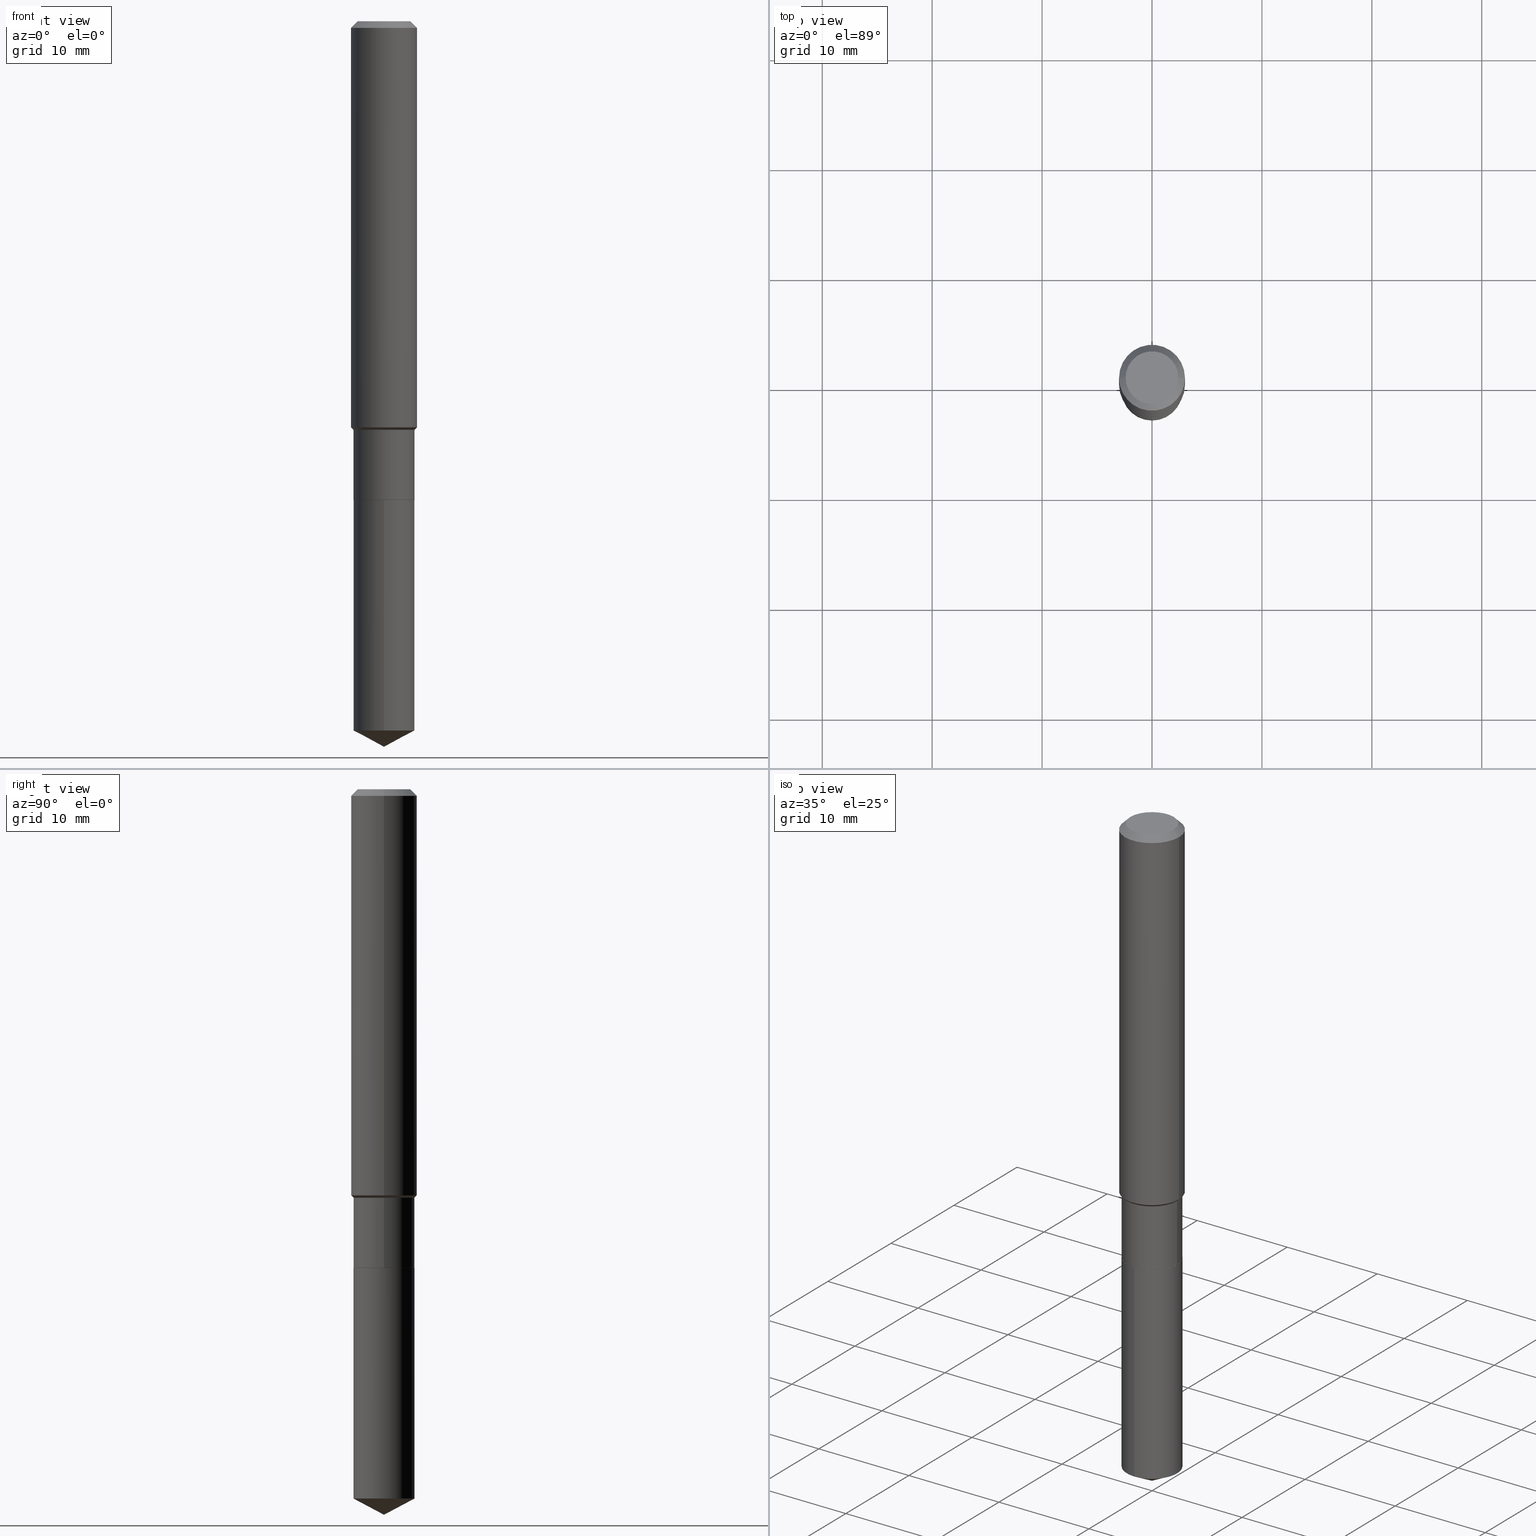
[diagram: canonical four-view strip — front | top / right | iso, engineering-drawing reading convention]
A machine part, canonical four-view strip (front | top / right | iso — engineering-drawing reading convention). The complete STEP part file that produces these views, byte-faithful:
ISO-10303-21;
HEADER;
FILE_DESCRIPTION (( 'STEP AP203' ),
    '1' );
FILE_NAME ('54708.STEP',
    '2024-04-24T15:25:59',
    ( '' ),
    ( '' ),
    'SwSTEP 2.0',
    'SolidWorks 2023',
    '' );
FILE_SCHEMA (( 'CONFIG_CONTROL_DESIGN' ));
ENDSEC;

DATA;
#1 = CYLINDRICAL_SURFACE ( 'NONE', #221, 0.1093999999999999972 ) ;
#2 = AXIS2_PLACEMENT_3D ( 'NONE', #161, #382, #308 ) ;
#3 = ORIENTED_EDGE ( 'NONE', *, *, #252, .F. ) ;
#4 = ADVANCED_FACE ( 'NONE', ( #416 ), #31, .T. ) ;
#5 = CARTESIAN_POINT ( 'NONE',  ( 3.578209957210091410E-29, -5.108735494995289992E-15, -1.463199999999999834 ) ) ;
#6 = CYLINDRICAL_SURFACE ( 'NONE', #326, 0.1181000000000000799 ) ;
#7 = DIRECTION ( 'NONE',  ( 2.445468806185136597E-29, -3.491481338843145583E-15, -1.000000000000000000 ) ) ;
#8 = VECTOR ( 'NONE', #366, 39.37007874015748854 ) ;
#9 = CC_DESIGN_PERSON_AND_ORGANIZATION_ASSIGNMENT ( #291, #475, ( #84 ) ) ;
#10 =( GEOMETRIC_REPRESENTATION_CONTEXT ( 3 ) GLOBAL_UNCERTAINTY_ASSIGNED_CONTEXT ( ( #411 ) ) GLOBAL_UNIT_ASSIGNED_CONTEXT ( ( #179, #299, #365 ) ) REPRESENTATION_CONTEXT ( 'NONE', 'WORKASPACE' ) );
#11 = DIRECTION ( 'NONE',  ( 1.000000000000000000, -6.982962677686271444E-15, 0.000000000000000000 ) ) ;
#12 = ORIENTED_EDGE ( 'NONE', *, *, #313, .F. ) ;
#13 = DIRECTION ( 'NONE',  ( 1.000000000000000000, -6.982962677686266711E-15, 0.000000000000000000 ) ) ;
#14 = ORIENTED_EDGE ( 'NONE', *, *, #327, .T. ) ;
#15 = PLANE ( 'NONE',  #110 ) ;
#16 = VERTEX_POINT ( 'NONE', #453 ) ;
#17 = CIRCLE ( 'NONE', #119, 0.1093999999999999972 ) ;
#18 = CARTESIAN_POINT ( 'NONE',  ( -7.639361169388354664E-16, -0.1094000000000059925, -1.714799999999999436 ) ) ;
#19 = ADVANCED_FACE ( 'NONE', ( #142 ), #81, .T. ) ;
#20 = ORIENTED_EDGE ( 'NONE', *, *, #487, .T. ) ;
#21 = COORDINATED_UNIVERSAL_TIME_OFFSET ( 5, 0, .BEHIND. ) ;
#22 = VERTEX_POINT ( 'NONE', #303 ) ;
#23 = DATE_AND_TIME ( #371, #75 ) ;
#24 = CARTESIAN_POINT ( 'NONE',  ( 0.09447999999999998066, -7.704367267948738690E-16, -2.700101262759583929E-17 ) ) ;
#25 = ADVANCED_FACE ( 'NONE', ( #114 ), #274, .T. ) ;
#26 = CIRCLE ( 'NONE', #310, 0.1093999999999999972 ) ;
#27 = CIRCLE ( 'NONE', #146, 0.1093999999999999695 ) ;
#28 = PERSON_AND_ORGANIZATION ( #160, #378 ) ;
#29 = LOCAL_TIME ( 11, 25, 59.00000000000000000, #104 ) ;
#30 = DIRECTION ( 'NONE',  ( 6.273719981627762132E-15, 0.8829475928589292089, 0.4694715627858865870 ) ) ;
#31 = CYLINDRICAL_SURFACE ( 'NONE', #155, 0.1181000000000000799 ) ;
#32 = DATE_AND_TIME ( #225, #139 ) ;
#33 = EDGE_LOOP ( 'NONE', ( #331, #243 ) ) ;
#34 = COORDINATED_UNIVERSAL_TIME_OFFSET ( 5, 0, .BEHIND. ) ;
#35 = LINE ( 'NONE', #149, #58 ) ;
#36 = AXIS2_PLACEMENT_3D ( 'NONE', #283, #94, #209 ) ;
#37 = APPROVAL ( #219, 'UNSPECIFIED' ) ;
#38 = CALENDAR_DATE ( 2024, 24, 4 ) ;
#39 = CARTESIAN_POINT ( 'NONE',  ( -0.1093999999999999695, -4.331401742073740803E-15, -1.463199999999999834 ) ) ;
#40 = APPROVAL_STATUS ( 'not_yet_approved' ) ;
#41 = DIRECTION ( 'NONE',  ( 1.000000000000000000, -6.982962677686266711E-15, 4.876176775795936353E-29 ) ) ;
#42 = ORIENTED_EDGE ( 'NONE', *, *, #242, .T. ) ;
#43 = EDGE_CURVE ( 'NONE', #247, #436, #376, .T. ) ;
#44 = DIRECTION ( 'NONE',  ( -2.445468806185136597E-29, 3.491481338843145583E-15, 1.000000000000000000 ) ) ;
#45 = AXIS2_PLACEMENT_3D ( 'NONE', #239, #80, #455 ) ;
#46 = DIRECTION ( 'NONE',  ( -6.982962677686265922E-15, -1.000000000000000000, 2.497118824190368439E-15 ) ) ;
#47 = LINE ( 'NONE', #273, #425 ) ;
#48 = DIRECTION ( 'NONE',  ( -2.445475505793823769E-29, 3.491471744622187291E-15, 1.000000000000000000 ) ) ;
#49 = ORIENTED_EDGE ( 'NONE', *, *, #55, .T. ) ;
#50 = AXIS2_PLACEMENT_3D ( 'NONE', #259, #191, #220 ) ;
#51 = DIRECTION ( 'NONE',  ( -0.7071067811865460184, 2.468850131082241283E-15, -0.7071067811865490160 ) ) ;
#52 = ORIENTED_EDGE ( 'NONE', *, *, #78, .T. ) ;
#53 = CARTESIAN_POINT ( 'NONE',  ( 6.212061172154443697E-29, -8.869161172201118079E-15, -2.540230988176234384 ) ) ;
#54 = ORIENTED_EDGE ( 'NONE', *, *, #417, .T. ) ;
#55 = EDGE_CURVE ( 'NONE', #474, #91, #35, .T. ) ;
#56 = CYLINDRICAL_SURFACE ( 'NONE', #255, 0.1093999999999999834 ) ;
#57 = EDGE_LOOP ( 'NONE', ( #72, #129, #20, #286 ) ) ;
#58 = VECTOR ( 'NONE', #334, 39.37007874015748143 ) ;
#59 = VECTOR ( 'NONE', #51, 39.37007874015748143 ) ;
#60 = CARTESIAN_POINT ( 'NONE',  ( 0.1088999999999999968, -6.747636835448259862E-15, -1.714799999999999880 ) ) ;
#61 = VERTEX_POINT ( 'NONE', #226 ) ;
#62 = DIRECTION ( 'NONE',  ( 1.000000000000000000, -6.982962677686267499E-15, 4.875432709231658792E-29 ) ) ;
#63 = CC_DESIGN_DATE_AND_TIME_ASSIGNMENT ( #32, #190, ( #84 ) ) ;
#64 = ORIENTED_EDGE ( 'NONE', *, *, #152, .F. ) ;
#65 = CONICAL_SURFACE ( 'NONE', #2, 74.04434902938338325, 1.082104136236485603 ) ;
#66 = MANIFOLD_SOLID_BREP ( 'Body-Move/Copy2[2]', #145 ) ;
#67 = AXIS2_PLACEMENT_3D ( 'NONE', #367, #113, #297 ) ;
#68 = CARTESIAN_POINT ( 'NONE',  ( 0.1180999999999999966, -8.926936027602933910E-16, -0.02362000000000014088 ) ) ;
#69 = APPLICATION_PROTOCOL_DEFINITION ( 'international standard', 'config_control_design', 1994, #278 ) ;
#70 = DIRECTION ( 'NONE',  ( -2.445468806185136597E-29, 3.491481338843145583E-15, 1.000000000000000000 ) ) ;
#71 = EDGE_CURVE ( 'NONE', #122, #358, #193, .T. ) ;
#72 = ORIENTED_EDGE ( 'NONE', *, *, #381, .F. ) ;
#73 = MANIFOLD_SOLID_BREP ( 'Body-Move/Copy2[1]', #354 ) ;
#74 = DIRECTION ( 'NONE',  ( -6.982962677686265922E-15, -1.000000000000000000, 2.497118824190368439E-15 ) ) ;
#75 = LOCAL_TIME ( 11, 25, 59.00000000000000000, #188 ) ;
#76 = CARTESIAN_POINT ( 'NONE',  ( 4.193489908846272188E-29, -5.987192199848225298E-15, -1.714799999999999880 ) ) ;
#77 = EDGE_LOOP ( 'NONE', ( #171, #49, #478, #272 ) ) ;
#78 = EDGE_CURVE ( 'NONE', #474, #330, #116, .T. ) ;
#79 = CARTESIAN_POINT ( 'NONE',  ( 6.603013411620882309E-46, -9.427353171913646324E-32, -2.700101262760083747E-17 ) ) ;
#80 = DIRECTION ( 'NONE',  ( -2.445468806185136597E-29, 3.491481338843145583E-15, 1.000000000000000000 ) ) ;
#81 = CONICAL_SURFACE ( 'NONE', #450, 0.1088999999999999968, 0.7853981633972775267 ) ;
#82 = AXIS2_PLACEMENT_3D ( 'NONE', #323, #279, #430 ) ;
#83 = ORIENTED_EDGE ( 'NONE', *, *, #201, .T. ) ;
#84 = SECURITY_CLASSIFICATION ( '', '', #264 ) ;
#85 = CARTESIAN_POINT ( 'NONE',  ( 6.354323554254669973E-29, -9.072240181226292208E-15, -2.598399999999999821 ) ) ;
#86 = VERTEX_POINT ( 'NONE', #267 ) ;
#87 = ADVANCED_FACE ( 'NONE', ( #409 ), #107, .T. ) ;
#88 = LINE ( 'NONE', #399, #206 ) ;
#89 = ORIENTED_EDGE ( 'NONE', *, *, #417, .F. ) ;
#90 = CARTESIAN_POINT ( 'NONE',  ( 4.193489908846272188E-29, -5.987192199848225298E-15, -1.714799999999999880 ) ) ;
#91 = VERTEX_POINT ( 'NONE', #481 ) ;
#92 = AXIS2_PLACEMENT_3D ( 'NONE', #140, #298, #446 ) ;
#93 = AXIS2_PLACEMENT_3D ( 'NONE', #79, #384, #460 ) ;
#94 = DIRECTION ( 'NONE',  ( -2.445468806185136597E-29, 3.491481338843145583E-15, 1.000000000000000000 ) ) ;
#95 = ORIENTED_EDGE ( 'NONE', *, *, #332, .F. ) ;
#96 = ADVANCED_FACE ( 'NONE', ( #257 ), #372, .T. ) ;
#97 = CARTESIAN_POINT ( 'NONE',  ( 0.1088999999999999968, -6.747636835448259862E-15, -1.714799999999999880 ) ) ;
#98 = ORIENTED_EDGE ( 'NONE', *, *, #112, .T. ) ;
#99 = LINE ( 'NONE', #213, #172 ) ;
#100 = EDGE_LOOP ( 'NONE', ( #42, #254, #388, #393 ) ) ;
#101 = CC_DESIGN_PERSON_AND_ORGANIZATION_ASSIGNMENT ( #482, #480, ( #256 ) ) ;
#102 = CALENDAR_DATE ( 2024, 24, 4 ) ;
#103 = DIRECTION ( 'NONE',  ( 1.000000000000000000, -6.982962677686266711E-15, 4.876176775795935793E-29 ) ) ;
#104 = COORDINATED_UNIVERSAL_TIME_OFFSET ( 5, 0, .BEHIND. ) ;
#105 = ORIENTED_EDGE ( 'NONE', *, *, #138, .F. ) ;
#106 = APPROVAL_ROLE ( '' ) ;
#107 = CYLINDRICAL_SURFACE ( 'NONE', #377, 0.1093999999999999972 ) ;
#108 = AXIS2_PLACEMENT_3D ( 'NONE', #489, #44, #316 ) ;
#109 = PERSON_AND_ORGANIZATION_ROLE ( 'design_owner' ) ;
#110 = AXIS2_PLACEMENT_3D ( 'NONE', #170, #325, #133 ) ;
#111 = DIRECTION ( 'NONE',  ( 1.000000000000000000, -6.982962677686264344E-15, 0.000000000000000000 ) ) ;
#112 = EDGE_CURVE ( 'NONE', #122, #61, #440, .T. ) ;
#113 = DIRECTION ( 'NONE',  ( 0.000000000000000000, 0.000000000000000000, 1.000000000000000000 ) ) ;
#114 = FACE_OUTER_BOUND ( 'NONE', #265, .T. ) ;
#115 = CARTESIAN_POINT ( 'NONE',  ( 6.212061172154443697E-29, -8.869161172201118079E-15, -2.540230988176234384 ) ) ;
#116 = CIRCLE ( 'NONE', #343, 0.1088999999999999968 ) ;
#117 = EDGE_CURVE ( 'NONE', #207, #391, #412, .T. ) ;
#118 = DIRECTION ( 'NONE',  ( 2.445475505793823489E-29, -3.491471744622187291E-15, -1.000000000000000000 ) ) ;
#119 = AXIS2_PLACEMENT_3D ( 'NONE', #237, #387, #46 ) ;
#120 = EDGE_LOOP ( 'NONE', ( #169, #98 ) ) ;
#121 = FACE_OUTER_BOUND ( 'NONE', #490, .T. ) ;
#122 = VERTEX_POINT ( 'NONE', #24 ) ;
#123 = CARTESIAN_POINT ( 'NONE',  ( 0.1093999999999999695, -5.872671611934168353E-15, -1.463199999999999834 ) ) ;
#124 = DIRECTION ( 'NONE',  ( -6.982962677686266711E-15, -1.000000000000000000, 3.541896320645568363E-15 ) ) ;
#125 = CIRCLE ( 'NONE', #294, 0.1181000000000001632 ) ;
#126 = EDGE_CURVE ( 'NONE', #434, #86, #181, .T. ) ;
#127 = PLANE ( 'NONE',  #82 ) ;
#128 = DIRECTION ( 'NONE',  ( -2.445468806185136597E-29, 3.491481338843145583E-15, 1.000000000000000000 ) ) ;
#129 = ORIENTED_EDGE ( 'NONE', *, *, #232, .T. ) ;
#130 = DIRECTION ( 'NONE',  ( 1.000000000000000000, -6.982962677686264344E-15, 0.000000000000000000 ) ) ;
#131 = EDGE_CURVE ( 'NONE', #207, #247, #368, .T. ) ;
#132 = EDGE_LOOP ( 'NONE', ( #419, #383, #301, #322 ) ) ;
#133 = DIRECTION ( 'NONE',  ( -1.000000000000000000, 6.982962677686265922E-15, -4.876176775795935793E-29 ) ) ;
#134 = ORIENTED_EDGE ( 'NONE', *, *, #463, .T. ) ;
#135 = CARTESIAN_POINT ( 'NONE',  ( -7.639361169388152518E-16, -0.1094000000000088374, -2.540230988176233495 ) ) ;
#136 = EDGE_LOOP ( 'NONE', ( #356, #328, #95, #210 ) ) ;
#137 = DIRECTION ( 'NONE',  ( -6.982962677686265922E-15, -1.000000000000000000, 2.497118824190368439E-15 ) ) ;
#138 = EDGE_CURVE ( 'NONE', #391, #247, #26, .T. ) ;
#139 = LOCAL_TIME ( 11, 25, 59.00000000000000000, #414 ) ;
#140 = CARTESIAN_POINT ( 'NONE',  ( 3.556934378596280140E-29, -5.078359607347354252E-15, -1.454499999999999682 ) ) ;
#141 = APPROVAL_ROLE ( '' ) ;
#142 = FACE_OUTER_BOUND ( 'NONE', #472, .T. ) ;
#143 = CARTESIAN_POINT ( 'NONE',  ( 4.193489908846272188E-29, -5.987192199848225298E-15, -1.714799999999999880 ) ) ;
#144 = ADVANCED_FACE ( 'NONE', ( #418 ), #1, .T. ) ;
#145 = CLOSED_SHELL ( 'NONE', ( #439, #25, #4, #353, #342, #96, #398, #162, #449, #479, #426, #19 ) ) ;
#146 = AXIS2_PLACEMENT_3D ( 'NONE', #5, #271, #422 ) ;
#147 = LENGTH_MEASURE_WITH_UNIT ( LENGTH_MEASURE( 0.02539999999999999897 ), #444 );
#148 = CC_DESIGN_SECURITY_CLASSIFICATION ( #84, ( #256 ) ) ;
#149 = CARTESIAN_POINT ( 'NONE',  ( -0.1088999999999999968, -5.213411160605476218E-15, -1.714799999999999880 ) ) ;
#150 = CARTESIAN_POINT ( 'NONE',  ( 4.193489908846271627E-29, -5.987192199848224509E-15, -1.714799999999999658 ) ) ;
#151 = PRODUCT_DEFINITION_SHAPE ( 'NONE', 'NONE',  #473 ) ;
#152 = EDGE_CURVE ( 'NONE', #86, #362, #427, .T. ) ;
#153 = LINE ( 'NONE', #123, #452 ) ;
#154 = PRODUCT_RELATED_PRODUCT_CATEGORY ( 'detail', '', ( #311 ) ) ;
#155 = AXIS2_PLACEMENT_3D ( 'NONE', #415, #228, #483 ) ;
#156 = CARTESIAN_POINT ( 'NONE',  ( 0.000000000000000000, 0.000000000000000000, 0.000000000000000000 ) ) ;
#157 = APPROVAL_PERSON_ORGANIZATION ( #195, #300, #192 ) ;
#158 = EDGE_LOOP ( 'NONE', ( #397, #134, #429, #3 ) ) ;
#159 = DIRECTION ( 'NONE',  ( -2.445468806185136597E-29, 3.491481338843145583E-15, 1.000000000000000000 ) ) ;
#160 = PERSON ( 'UNSPECIFIED', 'UNSPECIFIED', 'UNSPECIFIED', ('UNSPECIFIED'), ('UNSPECIFIED'), ('UNSPECIFIED') ) ;
#161 = CARTESIAN_POINT ( 'NONE',  ( -8.992425115446358329E-28, 1.283872608714141360E-13, 36.77167874015748339 ) ) ;
#162 = ADVANCED_FACE ( 'NONE', ( #380 ), #6, .T. ) ;
#163 = DIRECTION ( 'NONE',  ( -1.000000000000000000, 6.982962677686266711E-15, 0.000000000000000000 ) ) ;
#164 = CIRCLE ( 'NONE', #45, 0.1093999999999999972 ) ;
#165 = FACE_OUTER_BOUND ( 'NONE', #132, .T. ) ;
#166 = ORIENTED_EDGE ( 'NONE', *, *, #406, .T. ) ;
#167 = EDGE_CURVE ( 'NONE', #22, #86, #314, .T. ) ;
#168 = CARTESIAN_POINT ( 'NONE',  ( 3.578209957210091410E-29, -5.108735494995289992E-15, -1.463199999999999834 ) ) ;
#169 = ORIENTED_EDGE ( 'NONE', *, *, #208, .T. ) ;
#170 = CARTESIAN_POINT ( 'NONE',  ( 3.301506705810441154E-46, -4.713676585956823162E-32, -1.350050631380041873E-17 ) ) ;
#171 = ORIENTED_EDGE ( 'NONE', *, *, #313, .T. ) ;
#172 = VECTOR ( 'NONE', #287, 39.37007874015748143 ) ;
#173 = LOCAL_TIME ( 11, 25, 59.00000000000000000, #21 ) ;
#174 = DIRECTION ( 'NONE',  ( -2.445468806185136597E-29, 3.491481338843145583E-15, 1.000000000000000000 ) ) ;
#175 = ORIENTED_EDGE ( 'NONE', *, *, #373, .F. ) ;
#176 = PERSON_AND_ORGANIZATION_ROLE ( 'creator' ) ;
#177 = ORIENTED_EDGE ( 'NONE', *, *, #117, .F. ) ;
#178 = ADVANCED_FACE ( 'NONE', ( #121 ), #65, .T. ) ;
#179 =( CONVERSION_BASED_UNIT ( 'INCH', #147 ) LENGTH_UNIT ( ) NAMED_UNIT ( #445 ) );
#180 = DIRECTION ( 'NONE',  ( -2.445475505793823769E-29, 3.491471744622187291E-15, 1.000000000000000000 ) ) ;
#181 = CIRCLE ( 'NONE', #92, 0.1181000000000001632 ) ;
#182 = CONICAL_SURFACE ( 'NONE', #457, 0.1180999999999999966, 0.7853981633974461696 ) ;
#183 = AXIS2_PLACEMENT_3D ( 'NONE', #90, #396, #130 ) ;
#184 = CC_DESIGN_APPROVAL ( #37, ( #473 ) ) ;
#185 = CARTESIAN_POINT ( 'NONE',  ( 0.1093999999999999834, -7.639361169388774732E-16, 5.334537392720753208E-30 ) ) ;
#186 = DIRECTION ( 'NONE',  ( -2.445475505793823769E-29, 3.491471744622187291E-15, 1.000000000000000000 ) ) ;
#187 = EDGE_CURVE ( 'NONE', #288, #22, #27, .T. ) ;
#188 = COORDINATED_UNIVERSAL_TIME_OFFSET ( 5, 0, .BEHIND. ) ;
#189 = ORIENTED_EDGE ( 'NONE', *, *, #117, .T. ) ;
#190 = DATE_TIME_ROLE ( 'classification_date' ) ;
#191 = DIRECTION ( 'NONE',  ( 2.445468806185136597E-29, -3.491481338843145583E-15, -1.000000000000000000 ) ) ;
#192 = APPROVAL_ROLE ( '' ) ;
#193 = LINE ( 'NONE', #68, #394 ) ;
#194 = CC_DESIGN_PERSON_AND_ORGANIZATION_ASSIGNMENT ( #408, #176, ( #256 ) ) ;
#195 = PERSON_AND_ORGANIZATION ( #160, #378 ) ;
#196 = DIRECTION ( 'NONE',  ( 1.000000000000000000, -6.982962677686263555E-15, 0.000000000000000000 ) ) ;
#197 = DIRECTION ( 'NONE',  ( -2.445468806185136597E-29, 3.491481338843145583E-15, 1.000000000000000000 ) ) ;
#198 = ORIENTED_EDGE ( 'NONE', *, *, #71, .F. ) ;
#199 = CIRCLE ( 'NONE', #432, 0.1093999999999999972 ) ;
#200 = DIRECTION ( 'NONE',  ( -2.445468806185136597E-29, 3.491481338843145583E-15, 1.000000000000000000 ) ) ;
#201 = EDGE_CURVE ( 'NONE', #434, #358, #47, .T. ) ;
#202 = FACE_OUTER_BOUND ( 'NONE', #341, .T. ) ;
#203 = DIRECTION ( 'NONE',  ( -2.445468806185136877E-29, 3.491481338843145188E-15, 1.000000000000000000 ) ) ;
#204 = ADVANCED_BREP_SHAPE_REPRESENTATION ( '54708', ( #73, #66, #67 ), #10 ) ;
#205 = DIRECTION ( 'NONE',  ( 1.000000000000000000, -6.982962677686264344E-15, 0.000000000000000000 ) ) ;
#206 = VECTOR ( 'NONE', #462, 39.37007874015748143 ) ;
#207 = VERTEX_POINT ( 'NONE', #85 ) ;
#208 = EDGE_CURVE ( 'NONE', #61, #122, #263, .T. ) ;
#209 = DIRECTION ( 'NONE',  ( 1.000000000000000000, -6.982962677686266711E-15, 0.000000000000000000 ) ) ;
#210 = ORIENTED_EDGE ( 'NONE', *, *, #413, .F. ) ;
#211 = CARTESIAN_POINT ( 'NONE',  ( -0.1088999999999999968, -5.210761933431365017E-15, -1.714799999999999880 ) ) ;
#212 = ORIENTED_EDGE ( 'NONE', *, *, #78, .F. ) ;
#213 = CARTESIAN_POINT ( 'NONE',  ( -0.1093999999999999834, 7.773337529215494852E-16, -5.381314988738866015E-30 ) ) ;
#214 = ORIENTED_EDGE ( 'NONE', *, *, #167, .T. ) ;
#215 = AXIS2_PLACEMENT_3D ( 'NONE', #321, #128, #281 ) ;
#216 = EDGE_CURVE ( 'NONE', #86, #434, #125, .T. ) ;
#217 = ORIENTED_EDGE ( 'NONE', *, *, #373, .T. ) ;
#218 = CARTESIAN_POINT ( 'NONE',  ( 6.354300577276716395E-29, -9.072273085566491700E-15, -2.598399999999999821 ) ) ;
#219 = APPROVAL_STATUS ( 'not_yet_approved' ) ;
#220 = DIRECTION ( 'NONE',  ( -1.000000000000000000, 6.982962677686266711E-15, 0.000000000000000000 ) ) ;
#221 = AXIS2_PLACEMENT_3D ( 'NONE', #269, #459, #74 ) ;
#222 = EDGE_CURVE ( 'NONE', #22, #288, #236, .T. ) ;
#223 = PERSON_AND_ORGANIZATION ( #160, #378 ) ;
#224 = DIRECTION ( 'NONE',  ( 1.000000000000000000, -6.982962677686264344E-15, 0.000000000000000000 ) ) ;
#225 = CALENDAR_DATE ( 2024, 24, 4 ) ;
#226 = CARTESIAN_POINT ( 'NONE',  ( -0.09447999999999998066, 7.009847083995354710E-16, -2.700101262760559836E-17 ) ) ;
#227 = DATE_AND_TIME ( #38, #295 ) ;
#228 = DIRECTION ( 'NONE',  ( -2.445468806185136597E-29, 3.491481338843145583E-15, 1.000000000000000000 ) ) ;
#229 = AXIS2_PLACEMENT_3D ( 'NONE', #443, #407, #62 ) ;
#230 = VECTOR ( 'NONE', #289, 39.37007874015748143 ) ;
#231 = DIRECTION ( 'NONE',  ( -0.7071067811865516806, 7.493145998870369937E-15, 0.7071067811865433539 ) ) ;
#232 = EDGE_CURVE ( 'NONE', #91, #16, #476, .T. ) ;
#233 = DIRECTION ( 'NONE',  ( -2.445468806185136597E-29, 3.491481338843145583E-15, 1.000000000000000000 ) ) ;
#234 = CARTESIAN_POINT ( 'NONE',  ( 3.578209957210091410E-29, -5.108735494995289992E-15, -1.463199999999999834 ) ) ;
#235 = EDGE_CURVE ( 'NONE', #288, #434, #153, .T. ) ;
#236 = CIRCLE ( 'NONE', #420, 0.1093999999999999695 ) ;
#237 = CARTESIAN_POINT ( 'NONE',  ( 4.193489908846271627E-29, -5.987192199848224509E-15, -1.714799999999999658 ) ) ;
#238 = ORIENTED_EDGE ( 'NONE', *, *, #187, .T. ) ;
#239 = CARTESIAN_POINT ( 'NONE',  ( 4.192267174443178826E-29, -5.985446459178803005E-15, -1.714299999999999713 ) ) ;
#240 = ORIENTED_EDGE ( 'NONE', *, *, #208, .F. ) ;
#241 = DIRECTION ( 'NONE',  ( -2.445468806185136597E-29, 3.491481338843145583E-15, 1.000000000000000000 ) ) ;
#242 = EDGE_CURVE ( 'NONE', #16, #91, #164, .T. ) ;
#243 = ORIENTED_EDGE ( 'NONE', *, *, #252, .T. ) ;
#244 = CARTESIAN_POINT ( 'NONE',  ( 0.000000000000000000, 0.000000000000000000, 0.000000000000000000 ) ) ;
#245 = CIRCLE ( 'NONE', #36, 0.1180999999999999966 ) ;
#246 = CC_DESIGN_APPROVAL ( #300, ( #84 ) ) ;
#247 = VERTEX_POINT ( 'NONE', #423 ) ;
#248 = FACE_OUTER_BOUND ( 'NONE', #280, .T. ) ;
#249 = ORIENTED_EDGE ( 'NONE', *, *, #406, .F. ) ;
#250 = DIRECTION ( 'NONE',  ( -2.445468806185136597E-29, 3.491481338843145583E-15, 1.000000000000000000 ) ) ;
#251 = ORIENTED_EDGE ( 'NONE', *, *, #126, .T. ) ;
#252 = EDGE_CURVE ( 'NONE', #436, #431, #17, .T. ) ;
#253 = CARTESIAN_POINT ( 'NONE',  ( 5.776197320209327532E-31, -8.246878922347559293E-17, -0.02362000000000014088 ) ) ;
#254 = ORIENTED_EDGE ( 'NONE', *, *, #381, .T. ) ;
#255 = AXIS2_PLACEMENT_3D ( 'NONE', #244, #250, #401 ) ;
#256 = PRODUCT_DEFINITION_FORMATION_WITH_SPECIFIED_SOURCE ( 'ANY', '', #311, .NOT_KNOWN. ) ;
#257 = FACE_OUTER_BOUND ( 'NONE', #57, .T. ) ;
#258 = DATE_AND_TIME ( #305, #29 ) ;
#259 = CARTESIAN_POINT ( 'NONE',  ( 5.776197320209327532E-31, -8.246878922347559293E-17, -0.02362000000000014088 ) ) ;
#260 = ADVANCED_FACE ( 'NONE', ( #202 ), #404, .T. ) ;
#261 = DATE_TIME_ROLE ( 'creation_date' ) ;
#262 = DIRECTION ( 'NONE',  ( -2.445468806185136597E-29, 3.491481338843145583E-15, 1.000000000000000000 ) ) ;
#263 = CIRCLE ( 'NONE', #93, 0.09447999999999998066 ) ;
#264 = SECURITY_CLASSIFICATION_LEVEL ( 'unclassified' ) ;
#265 = EDGE_LOOP ( 'NONE', ( #467, #324, #166, #89 ) ) ;
#266 = PERSON_AND_ORGANIZATION ( #160, #378 ) ;
#267 = CARTESIAN_POINT ( 'NONE',  ( -0.1181000000000001632, -4.239208636414675266E-15, -1.454499999999999682 ) ) ;
#268 = ADVANCED_FACE ( 'NONE', ( #390 ), #486, .F. ) ;
#269 = CARTESIAN_POINT ( 'NONE',  ( 4.193489908846271627E-29, -5.987192199848224509E-15, -1.714799999999999658 ) ) ;
#270 = DIRECTION ( 'NONE',  ( 6.982962677686265922E-15, 1.000000000000000000, -3.491471744622187291E-15 ) ) ;
#271 = DIRECTION ( 'NONE',  ( -2.445468806185136597E-29, 3.491481338843145583E-15, 1.000000000000000000 ) ) ;
#272 = ORIENTED_EDGE ( 'NONE', *, *, #327, .F. ) ;
#273 = CARTESIAN_POINT ( 'NONE',  ( 0.1181000000000000799, -8.246878922347486570E-16, 5.758764772215004644E-30 ) ) ;
#274 = CONICAL_SURFACE ( 'NONE', #50, 0.1180999999999999966, 0.7853981633974461696 ) ;
#275 = AXIS2_PLACEMENT_3D ( 'NONE', #253, #174, #13 ) ;
#276 = DIRECTION ( 'NONE',  ( -2.445468806185136877E-29, 3.491481338843145188E-15, 1.000000000000000000 ) ) ;
#277 = APPROVAL ( #338, 'UNSPECIFIED' ) ;
#278 = APPLICATION_CONTEXT ( 'configuration controlled 3d designs of mechanical parts and assemblies' ) ;
#279 = DIRECTION ( 'NONE',  ( -2.438088387897960049E-29, 3.491481338843145188E-15, 1.000000000000000000 ) ) ;
#280 = EDGE_LOOP ( 'NONE', ( #198, #240, #54, #217 ) ) ;
#281 = DIRECTION ( 'NONE',  ( 1.000000000000000000, -6.982962677686271444E-15, 0.000000000000000000 ) ) ;
#282 = ORIENTED_EDGE ( 'NONE', *, *, #235, .F. ) ;
#283 = CARTESIAN_POINT ( 'NONE',  ( 5.776197320209327532E-31, -8.246878922347559293E-17, -0.02362000000000014088 ) ) ;
#284 = AXIS2_PLACEMENT_3D ( 'NONE', #351, #461, #124 ) ;
#285 = CC_DESIGN_APPROVAL ( #277, ( #256 ) ) ;
#286 = ORIENTED_EDGE ( 'NONE', *, *, #222, .F. ) ;
#287 = DIRECTION ( 'NONE',  ( -2.445468806185136877E-29, 3.491481338843145188E-15, 1.000000000000000000 ) ) ;
#288 = VERTEX_POINT ( 'NONE', #421 ) ;
#289 = DIRECTION ( 'NONE',  ( 0.7071067811864267805, -2.468850131080992517E-15, 0.7071067811866682540 ) ) ;
#290 = ORIENTED_EDGE ( 'NONE', *, *, #152, .T. ) ;
#291 = PERSON_AND_ORGANIZATION ( #160, #378 ) ;
#292 = CARTESIAN_POINT ( 'NONE',  ( 0.000000000000000000, 0.000000000000000000, 0.000000000000000000 ) ) ;
#293 = AXIS2_PLACEMENT_3D ( 'NONE', #292, #262, #103 ) ;
#294 = AXIS2_PLACEMENT_3D ( 'NONE', #317, #159, #196 ) ;
#295 = LOCAL_TIME ( 11, 25, 59.00000000000000000, #34 ) ;
#296 = CC_DESIGN_PERSON_AND_ORGANIZATION_ASSIGNMENT ( #441, #109, ( #311 ) ) ;
#297 = DIRECTION ( 'NONE',  ( 1.000000000000000000, 0.000000000000000000, 0.000000000000000000 ) ) ;
#298 = DIRECTION ( 'NONE',  ( -2.445468806185136597E-29, 3.491481338843145583E-15, 1.000000000000000000 ) ) ;
#299 =( NAMED_UNIT ( * ) PLANE_ANGLE_UNIT ( ) SI_UNIT ( $, .RADIAN. ) );
#300 = APPROVAL ( #40, 'UNSPECIFIED' ) ;
#301 = ORIENTED_EDGE ( 'NONE', *, *, #235, .T. ) ;
#302 = APPLICATION_PROTOCOL_DEFINITION ( 'international standard', 'config_control_design', 1994, #379 ) ;
#303 = CARTESIAN_POINT ( 'NONE',  ( -0.1093999999999999695, -4.769757224165497309E-15, -1.463199999999999834 ) ) ;
#304 = CIRCLE ( 'NONE', #275, 0.1180999999999999966 ) ;
#305 = CALENDAR_DATE ( 2024, 24, 4 ) ;
#306 = ORIENTED_EDGE ( 'NONE', *, *, #216, .T. ) ;
#307 = CC_DESIGN_PERSON_AND_ORGANIZATION_ASSIGNMENT ( #28, #363, ( #473 ) ) ;
#308 = DIRECTION ( 'NONE',  ( -6.982962677686266711E-15, -1.000000000000000000, 3.541896320645568363E-15 ) ) ;
#309 = DIRECTION ( 'NONE',  ( 0.7071067811865516806, -2.468850131082300448E-15, 0.7071067811865433539 ) ) ;
#310 = AXIS2_PLACEMENT_3D ( 'NONE', #115, #454, #347 ) ;
#311 = PRODUCT ( '54708', '54708', '', ( #374 ) ) ;
#312 = APPROVAL_DATE_TIME ( #227, #300 ) ;
#313 = EDGE_CURVE ( 'NONE', #330, #474, #485, .T. ) ;
#314 = LINE ( 'NONE', #39, #318 ) ;
#315 = ORIENTED_EDGE ( 'NONE', *, *, #131, .F. ) ;
#316 = DIRECTION ( 'NONE',  ( 1.000000000000000000, -6.982962677686269866E-15, 0.000000000000000000 ) ) ;
#317 = CARTESIAN_POINT ( 'NONE',  ( 3.556934378596280140E-29, -5.078359607347354252E-15, -1.454499999999999682 ) ) ;
#318 = VECTOR ( 'NONE', #231, 39.37007874015748143 ) ;
#319 = FACE_OUTER_BOUND ( 'NONE', #100, .T. ) ;
#320 = CC_DESIGN_DATE_AND_TIME_ASSIGNMENT ( #336, #261, ( #473 ) ) ;
#321 = CARTESIAN_POINT ( 'NONE',  ( 3.578209957210091410E-29, -5.108735494995289992E-15, -1.463199999999999834 ) ) ;
#322 = ORIENTED_EDGE ( 'NONE', *, *, #216, .F. ) ;
#323 = CARTESIAN_POINT ( 'NONE',  ( 1.189614977930268288E-29, -1.028891207086335600E-14, -1.714799999999999880 ) ) ;
#324 = ORIENTED_EDGE ( 'NONE', *, *, #71, .T. ) ;
#325 = DIRECTION ( 'NONE',  ( 2.438088387897960049E-29, -3.491481338843145188E-15, -1.000000000000000000 ) ) ;
#326 = AXIS2_PLACEMENT_3D ( 'NONE', #156, #200, #41 ) ;
#327 = EDGE_CURVE ( 'NONE', #330, #16, #428, .T. ) ;
#328 = ORIENTED_EDGE ( 'NONE', *, *, #43, .T. ) ;
#329 = FACE_OUTER_BOUND ( 'NONE', #360, .T. ) ;
#330 = VERTEX_POINT ( 'NONE', #97 ) ;
#331 = ORIENTED_EDGE ( 'NONE', *, *, #332, .T. ) ;
#332 = EDGE_CURVE ( 'NONE', #431, #436, #199, .T. ) ;
#333 = APPROVAL_DATE_TIME ( #23, #277 ) ;
#334 = DIRECTION ( 'NONE',  ( -0.7071067811864267805, 7.493145998869918709E-15, 0.7071067811866682540 ) ) ;
#335 = CONICAL_SURFACE ( 'NONE', #215, 0.1093999999999999695, 0.7853981633974541632 ) ;
#336 = DATE_AND_TIME ( #102, #173 ) ;
#337 = CARTESIAN_POINT ( 'NONE',  ( 6.354323755735645609E-29, -9.072240181226292208E-15, -2.598399999999999821 ) ) ;
#338 = APPROVAL_STATUS ( 'not_yet_approved' ) ;
#339 = EDGE_LOOP ( 'NONE', ( #251, #290, #249, #470 ) ) ;
#340 = DIRECTION ( 'NONE',  ( -2.445468806185136877E-29, 3.491481338843145188E-15, 1.000000000000000000 ) ) ;
#341 = EDGE_LOOP ( 'NONE', ( #315, #189, #385 ) ) ;
#342 = ADVANCED_FACE ( 'NONE', ( #319 ), #56, .T. ) ;
#343 = AXIS2_PLACEMENT_3D ( 'NONE', #451, #375, #111 ) ;
#344 = VECTOR ( 'NONE', #276, 39.37007874015748143 ) ;
#345 = CARTESIAN_POINT ( 'NONE',  ( 4.193489908846271627E-29, -5.987192199848224509E-15, -1.714799999999999658 ) ) ;
#346 = DIRECTION ( 'NONE',  ( 1.000000000000000000, -6.982962677686271444E-15, 0.000000000000000000 ) ) ;
#347 = DIRECTION ( 'NONE',  ( -6.982962677686265922E-15, -1.000000000000000000, 4.994237648380736877E-15 ) ) ;
#348 = AXIS2_PLACEMENT_3D ( 'NONE', #76, #233, #205 ) ;
#349 = APPROVAL_PERSON_ORGANIZATION ( #223, #277, #106 ) ;
#350 = CARTESIAN_POINT ( 'NONE',  ( -0.1181000000000000799, 8.391509709326788873E-16, -5.809262341591047988E-30 ) ) ;
#351 = CARTESIAN_POINT ( 'NONE',  ( -8.992425115446358329E-28, 1.283872608714141360E-13, 36.77167874015748339 ) ) ;
#352 = CARTESIAN_POINT ( 'NONE',  ( 0.1181000000000001632, -5.903047499582104093E-15, -1.454499999999999682 ) ) ;
#353 = ADVANCED_FACE ( 'NONE', ( #437 ), #468, .T. ) ;
#354 = CLOSED_SHELL ( 'NONE', ( #144, #178, #260, #87, #268 ) ) ;
#355 = CARTESIAN_POINT ( 'NONE',  ( 4.193489908846271627E-29, -5.987192199848224509E-15, -1.714799999999999658 ) ) ;
#356 = ORIENTED_EDGE ( 'NONE', *, *, #138, .T. ) ;
#357 = CARTESIAN_POINT ( 'NONE',  ( -0.1180999999999999966, -1.741263227352735474E-15, -0.02362000000000014088 ) ) ;
#358 = VERTEX_POINT ( 'NONE', #471 ) ;
#359 = FACE_OUTER_BOUND ( 'NONE', #120, .T. ) ;
#360 = EDGE_LOOP ( 'NONE', ( #12, #212 ) ) ;
#361 = LINE ( 'NONE', #392, #59 ) ;
#362 = VERTEX_POINT ( 'NONE', #357 ) ;
#363 = PERSON_AND_ORGANIZATION_ROLE ( 'creator' ) ;
#364 = EDGE_LOOP ( 'NONE', ( #238, #214, #400, #282 ) ) ;
#365 =( NAMED_UNIT ( * ) SI_UNIT ( $, .STERADIAN. ) SOLID_ANGLE_UNIT ( ) );
#366 = DIRECTION ( 'NONE',  ( -6.165590087286829718E-15, -0.8829475928589257672, 0.4694715627858926932 ) ) ;
#367 = CARTESIAN_POINT ( 'NONE',  ( 0.000000000000000000, 0.000000000000000000, 0.000000000000000000 ) ) ;
#368 = LINE ( 'NONE', #337, #456 ) ;
#369 = AXIS2_PLACEMENT_3D ( 'NONE', #53, #433, #435 ) ;
#370 = APPROVAL_PERSON_ORGANIZATION ( #266, #37, #141 ) ;
#371 = CALENDAR_DATE ( 2024, 24, 4 ) ;
#372 = CYLINDRICAL_SURFACE ( 'NONE', #293, 0.1093999999999999834 ) ;
#373 = EDGE_CURVE ( 'NONE', #362, #358, #245, .T. ) ;
#374 = MECHANICAL_CONTEXT ( 'NONE', #379, 'mechanical' ) ;
#375 = DIRECTION ( 'NONE',  ( -2.445468806185136597E-29, 3.491481338843145583E-15, 1.000000000000000000 ) ) ;
#376 = LINE ( 'NONE', #484, #424 ) ;
#377 = AXIS2_PLACEMENT_3D ( 'NONE', #345, #186, #137 ) ;
#378 = ORGANIZATION ( 'UNSPECIFIED', 'UNSPECIFIED', '' ) ;
#379 = APPLICATION_CONTEXT ( 'configuration controlled 3d designs of mechanical parts and assemblies' ) ;
#380 = FACE_OUTER_BOUND ( 'NONE', #438, .T. ) ;
#381 = EDGE_CURVE ( 'NONE', #91, #22, #99, .T. ) ;
#382 = DIRECTION ( 'NONE',  ( -2.445475505793823769E-29, 3.491471744622187291E-15, 1.000000000000000000 ) ) ;
#383 = ORIENTED_EDGE ( 'NONE', *, *, #222, .T. ) ;
#384 = DIRECTION ( 'NONE',  ( -2.445468806185136597E-29, 3.491481338843145583E-15, 1.000000000000000000 ) ) ;
#385 = ORIENTED_EDGE ( 'NONE', *, *, #463, .F. ) ;
#386 = AXIS2_PLACEMENT_3D ( 'NONE', #150, #118, #270 ) ;
#387 = DIRECTION ( 'NONE',  ( -2.445475505793823769E-29, 3.491471744622187291E-15, 1.000000000000000000 ) ) ;
#388 = ORIENTED_EDGE ( 'NONE', *, *, #187, .F. ) ;
#389 = DESIGN_CONTEXT ( 'detailed design', #278, 'design' ) ;
#390 = FACE_OUTER_BOUND ( 'NONE', #33, .T. ) ;
#391 = VERTEX_POINT ( 'NONE', #135 ) ;
#392 = CARTESIAN_POINT ( 'NONE',  ( -0.1180999999999999966, 7.422191030112725094E-16, -0.02362000000000014088 ) ) ;
#393 = ORIENTED_EDGE ( 'NONE', *, *, #487, .F. ) ;
#394 = VECTOR ( 'NONE', #448, 39.37007874015748143 ) ;
#395 = CONICAL_SURFACE ( 'NONE', #183, 0.1088999999999999968, 0.7853981633972775267 ) ;
#396 = DIRECTION ( 'NONE',  ( -2.445468806185136597E-29, 3.491481338843145583E-15, 1.000000000000000000 ) ) ;
#397 = ORIENTED_EDGE ( 'NONE', *, *, #43, .F. ) ;
#398 = ADVANCED_FACE ( 'NONE', ( #165 ), #335, .T. ) ;
#399 = CARTESIAN_POINT ( 'NONE',  ( -7.639361169388354664E-16, -0.1094000000000059925, -1.714799999999999436 ) ) ;
#400 = ORIENTED_EDGE ( 'NONE', *, *, #126, .F. ) ;
#401 = DIRECTION ( 'NONE',  ( 1.000000000000000000, -6.982962677686266711E-15, 4.876176775795935793E-29 ) ) ;
#402 = ORIENTED_EDGE ( 'NONE', *, *, #131, .T. ) ;
#403 = CARTESIAN_POINT ( 'NONE',  ( 7.773337529216117066E-16, 0.1093999999999940020, -1.714799999999999880 ) ) ;
#404 = CONICAL_SURFACE ( 'NONE', #284, 74.04434902938338325, 1.082104136236485603 ) ;
#405 = ORIENTED_EDGE ( 'NONE', *, *, #232, .F. ) ;
#406 = EDGE_CURVE ( 'NONE', #358, #362, #304, .T. ) ;
#407 = DIRECTION ( 'NONE',  ( -2.445468806185136597E-29, 3.491481338843145583E-15, 1.000000000000000000 ) ) ;
#408 = PERSON_AND_ORGANIZATION ( #160, #378 ) ;
#409 = FACE_OUTER_BOUND ( 'NONE', #158, .T. ) ;
#410 = LINE ( 'NONE', #185, #477 ) ;
#411 = UNCERTAINTY_MEASURE_WITH_UNIT (LENGTH_MEASURE( 1.000000000000000082E-05 ), #179, 'distance_accuracy_value', 'NONE');
#412 = LINE ( 'NONE', #218, #8 ) ;
#413 = EDGE_CURVE ( 'NONE', #391, #431, #88, .T. ) ;
#414 = COORDINATED_UNIVERSAL_TIME_OFFSET ( 5, 0, .BEHIND. ) ;
#415 = CARTESIAN_POINT ( 'NONE',  ( 0.000000000000000000, 0.000000000000000000, 0.000000000000000000 ) ) ;
#416 = FACE_OUTER_BOUND ( 'NONE', #339, .T. ) ;
#417 = EDGE_CURVE ( 'NONE', #61, #362, #361, .T. ) ;
#418 = FACE_OUTER_BOUND ( 'NONE', #136, .T. ) ;
#419 = ORIENTED_EDGE ( 'NONE', *, *, #167, .F. ) ;
#420 = AXIS2_PLACEMENT_3D ( 'NONE', #234, #197, #346 ) ;
#421 = CARTESIAN_POINT ( 'NONE',  ( 0.1093999999999999695, -5.872671611934168353E-15, -1.463199999999999834 ) ) ;
#422 = DIRECTION ( 'NONE',  ( 1.000000000000000000, -6.982962677686271444E-15, 0.000000000000000000 ) ) ;
#423 = CARTESIAN_POINT ( 'NONE',  ( 7.773337529216115094E-16, 0.1093999999999911155, -2.540230988176234828 ) ) ;
#424 = VECTOR ( 'NONE', #180, 39.37007874015748143 ) ;
#425 = VECTOR ( 'NONE', #203, 39.37007874015748143 ) ;
#426 = ADVANCED_FACE ( 'NONE', ( #329 ), #127, .F. ) ;
#427 = LINE ( 'NONE', #350, #344 ) ;
#428 = LINE ( 'NONE', #60, #230 ) ;
#429 = ORIENTED_EDGE ( 'NONE', *, *, #413, .T. ) ;
#430 = DIRECTION ( 'NONE',  ( 1.000000000000000000, -6.982962677686265922E-15, 4.876176775795935793E-29 ) ) ;
#431 = VERTEX_POINT ( 'NONE', #18 ) ;
#432 = AXIS2_PLACEMENT_3D ( 'NONE', #355, #48, #464 ) ;
#433 = DIRECTION ( 'NONE',  ( -2.445475505793823769E-29, 3.491471744622187291E-15, 1.000000000000000000 ) ) ;
#434 = VERTEX_POINT ( 'NONE', #352 ) ;
#435 = DIRECTION ( 'NONE',  ( -6.982962677686265922E-15, -1.000000000000000000, 4.994237648380736877E-15 ) ) ;
#436 = VERTEX_POINT ( 'NONE', #403 ) ;
#437 = FACE_OUTER_BOUND ( 'NONE', #364, .T. ) ;
#438 = EDGE_LOOP ( 'NONE', ( #64, #306, #83, #175 ) ) ;
#439 = ADVANCED_FACE ( 'NONE', ( #466 ), #395, .T. ) ;
#440 = CIRCLE ( 'NONE', #229, 0.09447999999999998066 ) ;
#441 = PERSON_AND_ORGANIZATION ( #160, #378 ) ;
#442 = AXIS2_PLACEMENT_3D ( 'NONE', #168, #241, #11 ) ;
#443 = CARTESIAN_POINT ( 'NONE',  ( 6.603013411620882309E-46, -9.427353171913646324E-32, -2.700101262760083747E-17 ) ) ;
#444 =( LENGTH_UNIT ( ) NAMED_UNIT ( * ) SI_UNIT ( $, .METRE. ) );
#445 = DIMENSIONAL_EXPONENTS ( 1.000000000000000000, 0.000000000000000000, 0.000000000000000000, 0.000000000000000000, 0.000000000000000000, 0.000000000000000000, 0.000000000000000000 ) ;
#446 = DIRECTION ( 'NONE',  ( 1.000000000000000000, -6.982962677686263555E-15, 0.000000000000000000 ) ) ;
#447 = APPROVAL_DATE_TIME ( #258, #37 ) ;
#448 = DIRECTION ( 'NONE',  ( 0.7071067811865460184, -7.319954787623251312E-15, -0.7071067811865490160 ) ) ;
#449 = ADVANCED_FACE ( 'NONE', ( #248 ), #182, .T. ) ;
#450 = AXIS2_PLACEMENT_3D ( 'NONE', #143, #70, #224 ) ;
#451 = CARTESIAN_POINT ( 'NONE',  ( 4.193489908846272188E-29, -5.987192199848225298E-15, -1.714799999999999880 ) ) ;
#452 = VECTOR ( 'NONE', #309, 39.37007874015748143 ) ;
#453 = CARTESIAN_POINT ( 'NONE',  ( 0.1093999999999999972, -6.749382576117681366E-15, -1.714299999999999713 ) ) ;
#454 = DIRECTION ( 'NONE',  ( -2.445475505793823769E-29, 3.491471744622187291E-15, 1.000000000000000000 ) ) ;
#455 = DIRECTION ( 'NONE',  ( 1.000000000000000000, -6.982962677686269866E-15, 0.000000000000000000 ) ) ;
#456 = VECTOR ( 'NONE', #30, 39.37007874015748143 ) ;
#457 = AXIS2_PLACEMENT_3D ( 'NONE', #469, #7, #163 ) ;
#458 = CIRCLE ( 'NONE', #369, 0.1093999999999999972 ) ;
#459 = DIRECTION ( 'NONE',  ( -2.445475505793823769E-29, 3.491471744622187291E-15, 1.000000000000000000 ) ) ;
#460 = DIRECTION ( 'NONE',  ( 1.000000000000000000, -6.982962677686267499E-15, 4.875432709231658792E-29 ) ) ;
#461 = DIRECTION ( 'NONE',  ( -2.445475505793823769E-29, 3.491471744622187291E-15, 1.000000000000000000 ) ) ;
#462 = DIRECTION ( 'NONE',  ( -2.445475505793823769E-29, 3.491471744622187291E-15, 1.000000000000000000 ) ) ;
#463 = EDGE_CURVE ( 'NONE', #247, #391, #458, .T. ) ;
#464 = DIRECTION ( 'NONE',  ( -6.982962677686265922E-15, -1.000000000000000000, 2.497118824190368439E-15 ) ) ;
#465 = ORIENTED_EDGE ( 'NONE', *, *, #55, .F. ) ;
#466 = FACE_OUTER_BOUND ( 'NONE', #77, .T. ) ;
#467 = ORIENTED_EDGE ( 'NONE', *, *, #112, .F. ) ;
#468 = CONICAL_SURFACE ( 'NONE', #442, 0.1093999999999999695, 0.7853981633974541632 ) ;
#469 = CARTESIAN_POINT ( 'NONE',  ( 5.776197320209327532E-31, -8.246878922347559293E-17, -0.02362000000000014088 ) ) ;
#470 = ORIENTED_EDGE ( 'NONE', *, *, #201, .F. ) ;
#471 = CARTESIAN_POINT ( 'NONE',  ( 0.1180999999999999966, -9.071566814582237199E-16, -0.02362000000000014088 ) ) ;
#472 = EDGE_LOOP ( 'NONE', ( #465, #52, #14, #405 ) ) ;
#473 = PRODUCT_DEFINITION ( 'UNKNOWN', '', #256, #389 ) ;
#474 = VERTEX_POINT ( 'NONE', #211 ) ;
#475 = PERSON_AND_ORGANIZATION_ROLE ( 'classification_officer' ) ;
#476 = CIRCLE ( 'NONE', #108, 0.1093999999999999972 ) ;
#477 = VECTOR ( 'NONE', #340, 39.37007874015748143 ) ;
#478 = ORIENTED_EDGE ( 'NONE', *, *, #242, .F. ) ;
#479 = ADVANCED_FACE ( 'NONE', ( #359 ), #15, .F. ) ;
#480 = PERSON_AND_ORGANIZATION_ROLE ( 'design_supplier' ) ;
#481 = CARTESIAN_POINT ( 'NONE',  ( -0.1093999999999999972, -4.769757224165497309E-15, -1.714299999999999713 ) ) ;
#482 = PERSON_AND_ORGANIZATION ( #160, #378 ) ;
#483 = DIRECTION ( 'NONE',  ( 1.000000000000000000, -6.982962677686266711E-15, 4.876176775795936353E-29 ) ) ;
#484 = CARTESIAN_POINT ( 'NONE',  ( 7.773337529215914920E-16, 0.1093999999999940020, -1.714799999999999880 ) ) ;
#485 = CIRCLE ( 'NONE', #348, 0.1088999999999999968 ) ;
#486 = PLANE ( 'NONE',  #386 ) ;
#487 = EDGE_CURVE ( 'NONE', #16, #288, #410, .T. ) ;
#488 = SHAPE_DEFINITION_REPRESENTATION ( #151, #204 ) ;
#489 = CARTESIAN_POINT ( 'NONE',  ( 4.192267174443178826E-29, -5.985446459178803005E-15, -1.714299999999999713 ) ) ;
#490 = EDGE_LOOP ( 'NONE', ( #177, #402, #105 ) ) ;
ENDSEC;
END-ISO-10303-21;
